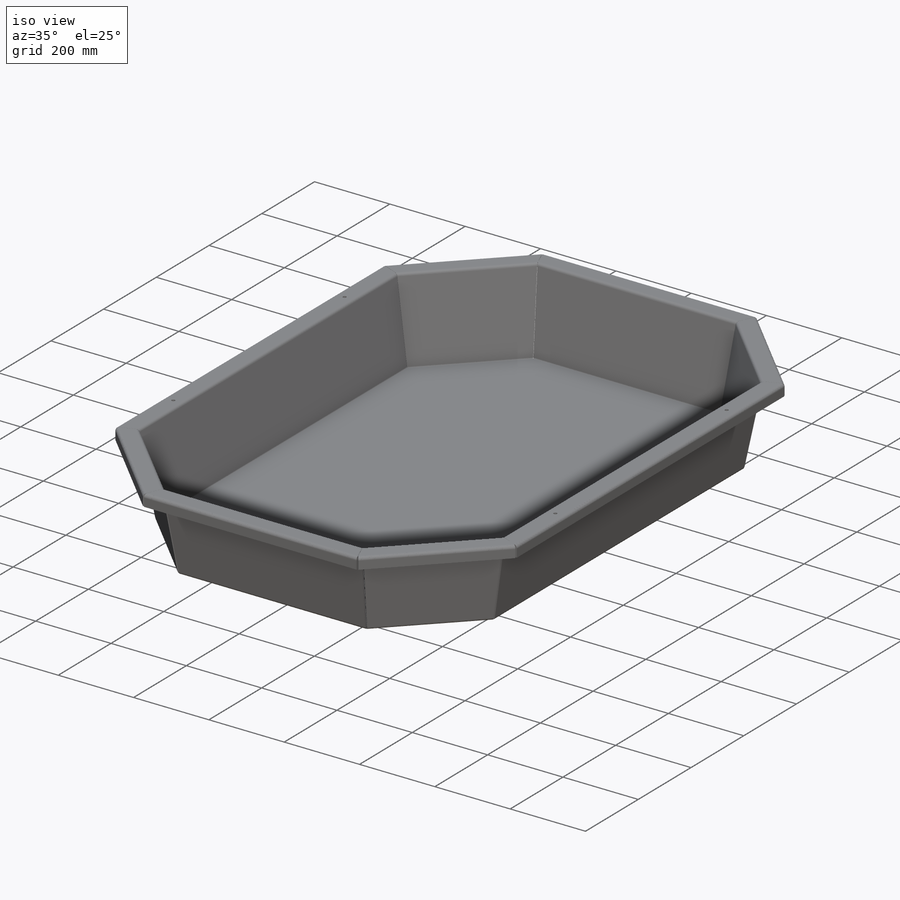
[diagram: iso view]
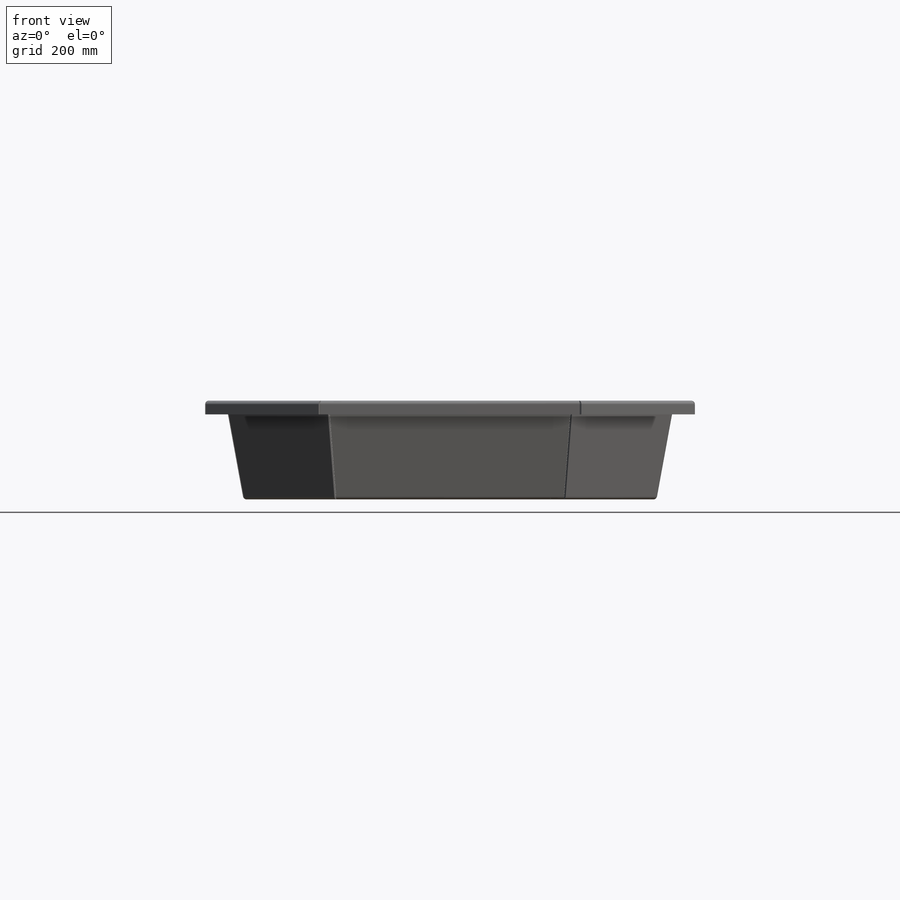
[diagram: front view]
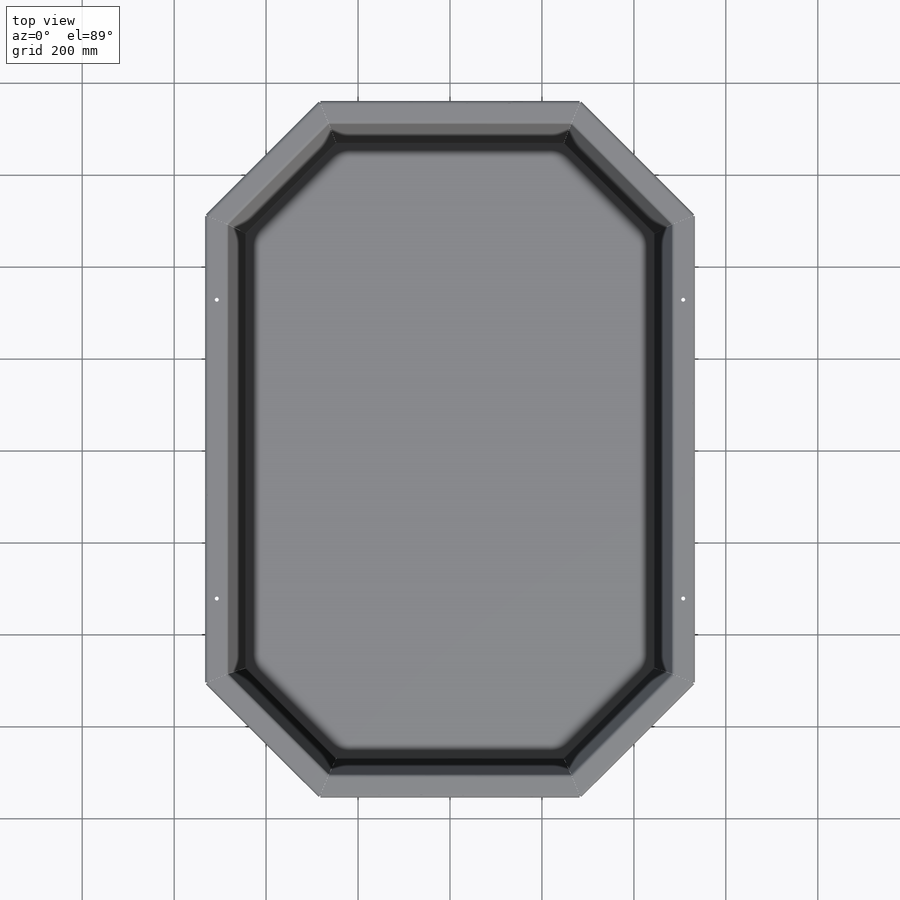
[diagram: top view]
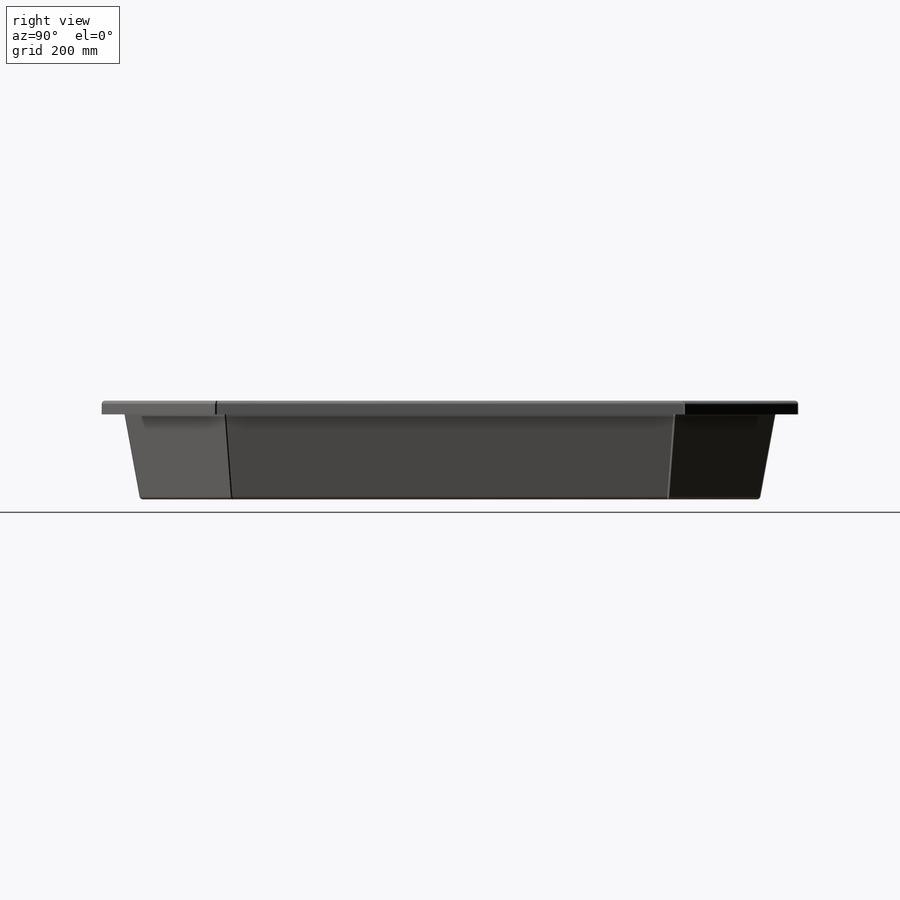
[diagram: right view]
SOLIDWORKS PART (.sldprt)
format: sldprt  version: not decoded by parser v0  size: 921,088 bytes
history: native  units: mm
features: sheet_metal_op x27, sketch x13, plane x5, hole x4, thread x3, material x1 + 48 further entries (+9 scaffold rows collapsed; 3 parser-record rows omitted)
feature tree (113):
  scaffold x9  (default folders/planes/origin — collapsed)
  material  "1.4301 (X5CrNi18-10)"
  plane  "Ebene vorne"
  plane  "Ebene oben"
  plane  "Ebene rechts"
  sketch  "Skizze1"  dims[c1.D1=~28.152497mm c2.D1=~47.489553deg c3.D1=110.0mm c3.D2=1180.0mm c3.D3=330.0mm c3.D4=~785.398163mm c4.D1=200.0mm c4.D2=1350.0mm c4.D3=900.0mm c5.D1=3.0mm c5.D2=0.5 c5.D3=0.0deg c5.D6=~28.64789deg]
  sheet_metal_op  "Basis-Blech1"
  plane  "Ebene3"
  sketch  "Skizze155"  dims[c1.D1=40.0mm c1.D2=25.0mm c1.D3=~174.532925mm c1.D4=205.0mm c2.D3=77.5mm c2.D1=3.0mm c2.D4=~1389.869866mm c2.D5=1.0 c2.D8=~0.143239deg c2.D9=~0.143239deg]
  sheet_metal_op  "Gehrungsbiegung4"
  sheet_metal_op  "Gehrungsbiegung5"
  sheet_metal_op  "Gehrungsbiegung6"
  sheet_metal_op  "Gehrungsbiegung7"
  sheet_metal_op  "Gehrungsbiegung8"
  sheet_metal_op  "Gehrungsbiegung9"
  sheet_metal_op  "Gehrungsbiegung10"
  sheet_metal_op  "Gehrungsbiegung11"
  sheet_metal_op  "Gehrungsbiegung12"
  sheet_metal_op  "Gehrungsbiegung13"
  sheet_metal_op  "Gehrungsbiegung14"
  sheet_metal_op  "Gehrungsbiegung15"
  sheet_metal_op  "Gehrungsbiegung16"
  sheet_metal_op  "Gehrungsbiegung17"
  sheet_metal_op  "Gehrungsbiegung18"
  sheet_metal_op  "Gehrungsbiegung19"
  sheet_metal_op  "Gehrungsbiegung20"
  sheet_metal_op  "Gehrungsbiegung21"
  sheet_metal_op  "Gehrungsbiegung22"
  sheet_metal_op  "Gehrungsbiegung23"
  sheet_metal_op  "Gehrungsbiegung24"
  sheet_metal_op  "Gehrungsbiegung25"
  sheet_metal_op  "Gehrungsbiegung26"
  hole  "M10 Gewindebohrung1"  Diameter=8.5mm Depth=215mm
  sketch  "Skizze104"  dims[D1=650.0mm]
  sketch  "Skizze103"  dims[hole-wizard template sketch: 44 standard entries collapsed; hole parameters kept: c7.Bohrerdurchmesser=8.5mm c7.Bohrungstiefe=215.0mm]
  thread  "Bohrungsgewinde5"  Diameter=10mm  [1 undecoded]
  hole  "Bohrungsgewinde6"  Diameter=10mm
  hole  "Bohrungsgewinde7"  Diameter=10mm
  hole  "Bohrungsgewinde8"  Diameter=10mm
  plane  "Ebene1"  Offset=25mm
  sketch  "Biegung-Linien1"
  sketch  "Rahmen1"
  sheet_metal_op  "Blech(1)"
  "Abwicklung(1)"
  sketch  "Biegung-Linien2"
  sketch  "Rahmen2"
  parser-record x3  (decoder bookkeeping rows leaked as tree rows — omitted from the tree; the rows remain in map.json)
  "Abwickeln-<Gehrungsbiegung4>1"
  "Abwickeln-<Gehrungsbiegung5>1"
  "Abwickeln-<Gehrungsbiegung6>1"
  "Abwickeln-<Gehrungsbiegung7>1"
  "Abwickeln-<Gehrungsbiegung8>1"
  "Abwickeln-<Gehrungsbiegung9>1"
  "Abwickeln-<Gehrungsbiegung10>1"
  "Abwickeln-<Gehrungsbiegung11>1"
  "Abwickeln-<Gehrungsbiegung12>1"
  "Abwickeln-<Gehrungsbiegung13>1"
  "Abwickeln-<Gehrungsbiegung14>1"
  "Abwickeln-<Gehrungsbiegung15>1"
  "Abwickeln-<Gehrungsbiegung16>1"
  "Abwickeln-<Gehrungsbiegung17>1"
  "Abwickeln-<Gehrungsbiegung18>1"
  "Abwickeln-<Gehrungsbiegung19>1"
  "Abwickeln-<Gehrungsbiegung20>1"
  "Abwickeln-<Gehrungsbiegung21>1"
  "Abwickeln-<Gehrungsbiegung22>1"
  "Abwickeln-<Gehrungsbiegung23>1"
  "Abwickeln-<Gehrungsbiegung24>1"
  "Abwickeln-<Gehrungsbiegung25>1"
  "Abwickeln-<Gehrungsbiegung26>1"
  thread  "Blech(7)"  Diameter=3mm  [1 undecoded]
  sheet_metal_op  "Abwicklung(1)"
  sketch  "Biegung-Linien8"
  sketch  "Rahmen8"
  sketch  "Skizze100-1"  dims[D1=650.0mm D2=1000.0mm D3=1000.0mm]
  "Abwickeln-<Gehrungsbiegung3>2"
  "Abwickeln-<Gehrungsbiegung4>2"
  "Abwickeln-<Gehrungsbiegung5>2"
  "Abwickeln-<Gehrungsbiegung6>2"
  "Abwickeln-<Gehrungsbiegung7>2"
  "Abwickeln-<Gehrungsbiegung8>2"
  "Abwickeln-<Gehrungsbiegung9>2"
  "Abwickeln-<Gehrungsbiegung10>2"
  "Abwickeln-<Gehrungsbiegung11>2"
  "Abwickeln-<Gehrungsbiegung12>2"
  "Abwickeln-<Gehrungsbiegung13>2"
  "Abwickeln-<Gehrungsbiegung14>2"
  "Abwickeln-<Gehrungsbiegung15>2"
  "Abwickeln-<Gehrungsbiegung16>2"
  "Abwickeln-<Gehrungsbiegung17>2"
  "Abwickeln-<Gehrungsbiegung18>2"
  "Abwickeln-<Gehrungsbiegung19>2"
  "Abwickeln-<Gehrungsbiegung20>2"
  "Abwickeln-<Gehrungsbiegung21>2"
  "Abwickeln-<Gehrungsbiegung22>2"
  "Abwickeln-<Gehrungsbiegung23>2"
  "Abwickeln-<Gehrungsbiegung24>2"
  "Abwickeln-<Gehrungsbiegung25>2"
  "Abwickeln-<Gehrungsbiegung26>2"
  thread  "Blech(8)"  Diameter=3mm  [1 undecoded]
  sheet_metal_op  "Abwicklung(1)"
  sketch  "Biegung-Linien9"
  sketch  "Rahmen9"
decode coverage: 12 of 47 modeling features carry decoded parameters; 48 rows unclassified (native names shown)
note: ~ marks probable driven/reference dimensions
note: 3 parameter values undecoded
note: suppression state not decoded; provenance and decode notes live in map.json
